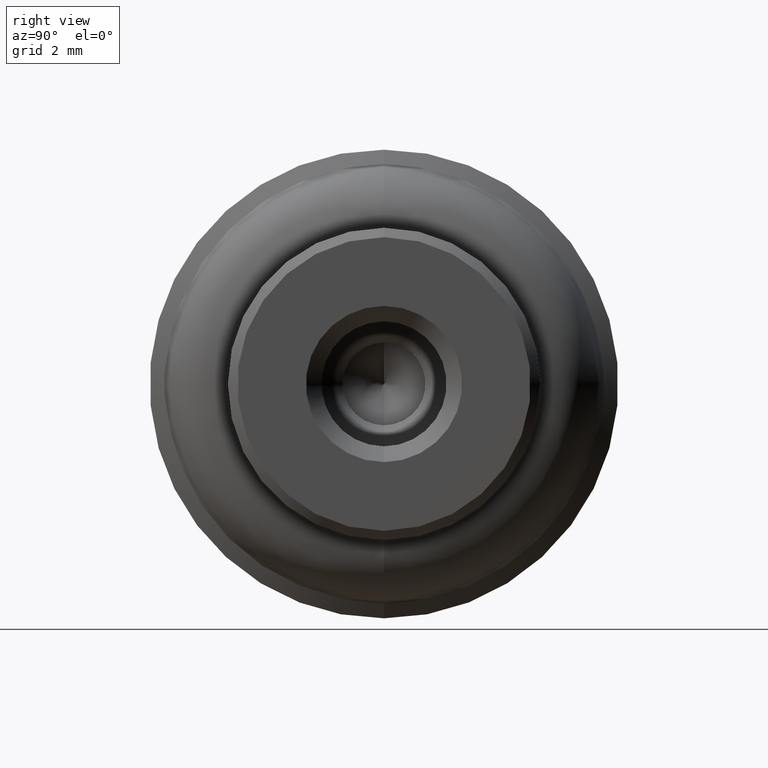
[diagram: clean part render]
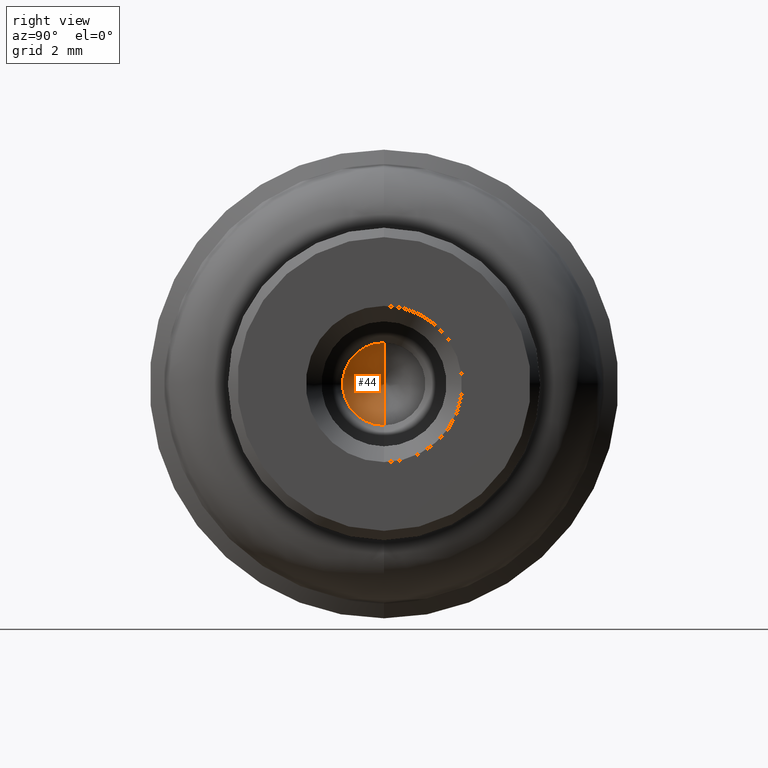
[diagram: same view with one face highlighted and labeled with its STEP entity id]
A machine part, right view. The second image highlights one B-rep face of the part: STEP entity #44.
In plain terms, the highlighted face is a freeform B-spline surface patch.
Its self-contained STEP definition (entity closure, byte-faithful):
#44=ADVANCED_FACE('',(#114),#113,.F.);
#113=( BOUNDED_SURFACE() B_SPLINE_SURFACE( 2,1,((#396,#397),(#398,#399),(#400,#401),(#402,#403),(#404,#405)), .UNSPECIFIED.,.F.,.F.,.F.) B_SPLINE_SURFACE_WITH_KNOTS((3,2,3),(2,2),(0.00000000000E+00,5.00000000000E-01,1.00000000000E+00),(0.00000000000E+00,1.00000000000E+00), .UNSPECIFIED. ) GEOMETRIC_REPRESENTATION_ITEM() RATIONAL_B_SPLINE_SURFACE(((1.00000000000E+00,1.00000000000E+00),(7.07106781187E-01,7.07106781187E-01),(1.00000000000E+00,1.00000000000E+00),(7.07106781187E-01,7.07106781187E-01),(1.00000000000E+00,1.00000000000E+00))) REPRESENTATION_ITEM('') SURFACE() );
#114=FACE_OUTER_BOUND('',#406,.T.);
#396=CARTESIAN_POINT('',(-7.92125948074E+00,0.00000000000E+00,0.00000000000E+00));
#397=CARTESIAN_POINT('',(-6.83940151101E+00,-4.58956709805E-16,1.87383297014E+00));
#398=CARTESIAN_POINT('',(-7.92125948074E+00,0.00000000000E+00,0.00000000000E+00));
#399=CARTESIAN_POINT('',(-6.83940151101E+00,-1.87383297014E+00,1.87383297014E+00));
#400=CARTESIAN_POINT('',(-7.92125948074E+00,0.00000000000E+00,0.00000000000E+00));
#401=CARTESIAN_POINT('',(-6.83940151101E+00,-1.87383297014E+00,-3.44217532354E-16));
#402=CARTESIAN_POINT('',(-7.92125948074E+00,0.00000000000E+00,0.00000000000E+00));
#403=CARTESIAN_POINT('',(-6.83940151101E+00,-1.87383297014E+00,-1.87383297014E+00));
#404=CARTESIAN_POINT('',(-7.92125948074E+00,0.00000000000E+00,0.00000000000E+00));
#405=CARTESIAN_POINT('',(-6.83940151101E+00,2.29478354902E-16,-1.87383297014E+00));
#406=EDGE_LOOP('',(#696,#697,#698));
#696=ORIENTED_EDGE('',*,*,#812,.T.);
#697=ORIENTED_EDGE('',*,*,#813,.F.);
#698=ORIENTED_EDGE('',*,*,#814,.F.);
#812=EDGE_CURVE('',#954,#955,#956,.T.);
#813=EDGE_CURVE('',#962,#955,#963,.T.);
#814=EDGE_CURVE('',#954,#962,#969,.T.);
#954=VERTEX_POINT('',#1307);
#955=VERTEX_POINT('',#1308);
#956=(BOUNDED_CURVE() B_SPLINE_CURVE(1,(#1309,#1310),.UNSPECIFIED.,.F.,.F.) B_SPLINE_CURVE_WITH_KNOTS((2,2),(0.00000000000E+00,7.07106769086E-01),.UNSPECIFIED.) CURVE() GEOMETRIC_REPRESENTATION_ITEM() RATIONAL_B_SPLINE_CURVE((1.00000000000E+00,1.00000000000E+00)) REPRESENTATION_ITEM('') );
#962=VERTEX_POINT('',#1311);
#963=CIRCLE('',#1315,1.32500000000E+00);
#969=(BOUNDED_CURVE() B_SPLINE_CURVE(1,(#1316,#1317),.UNSPECIFIED.,.F.,.F.) B_SPLINE_CURVE_WITH_KNOTS((2,2),(0.00000000000E+00,7.07106781187E-01),.UNSPECIFIED.) CURVE() GEOMETRIC_REPRESENTATION_ITEM() RATIONAL_B_SPLINE_CURVE((7.50000000000E-01,7.50000000000E-01)) REPRESENTATION_ITEM('') );
#1307=CARTESIAN_POINT('',(-7.92125948074E+00,0.00000000000E+00,0.00000000000E+00));
#1308=CARTESIAN_POINT('',(-7.15627037406E+00,0.00000000000E+00,1.32500000000E+00));
#1309=CARTESIAN_POINT('',(-7.92125948074E+00,0.00000000000E+00,0.00000000000E+00));
#1310=CARTESIAN_POINT('',(-7.15627038716E+00,-3.24520678209E-16,1.32499997733E+00));
#1311=CARTESIAN_POINT('',(-7.15627037406E+00,7.40148683083E-17,-1.32500000000E+00));
#1312=CARTESIAN_POINT('',(-7.15627037406E+00,0.00000000000E+00,0.00000000000E+00));
#1313=DIRECTION('',(-1.00000000000E+00,0.00000000000E+00,0.00000000000E+00));
#1314=DIRECTION('',(0.00000000000E+00,-1.22460635382E-16,1.00000000000E+00));
#1315=AXIS2_PLACEMENT_3D('',#1312,#1313,#1314);
#1316=CARTESIAN_POINT('',(-7.92125948074E+00,0.00000000000E+00,0.00000000000E+00));
#1317=CARTESIAN_POINT('',(-7.15627037406E+00,3.14018491737E-16,-1.32500000000E+00));